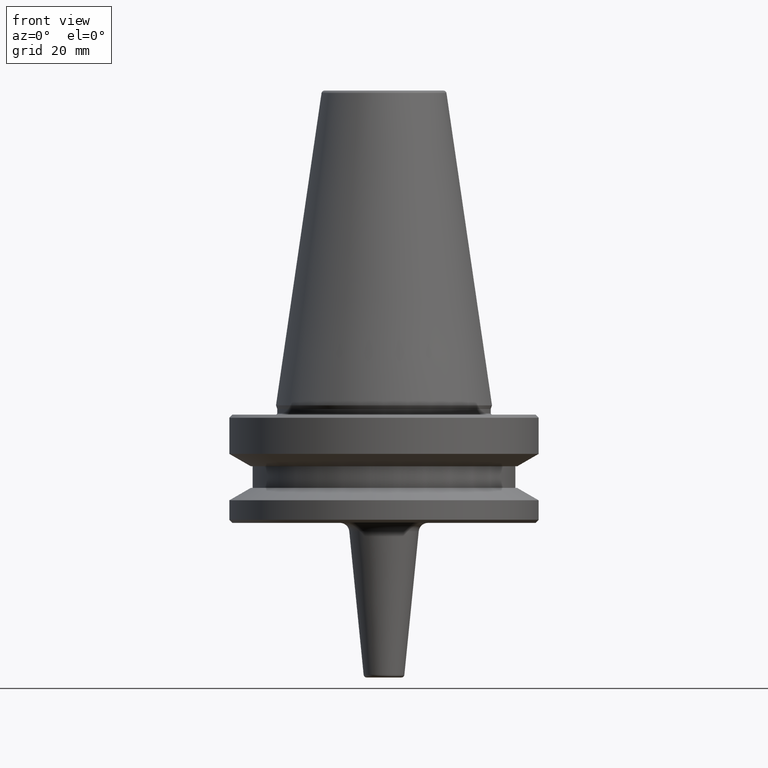
[diagram: clean part render]
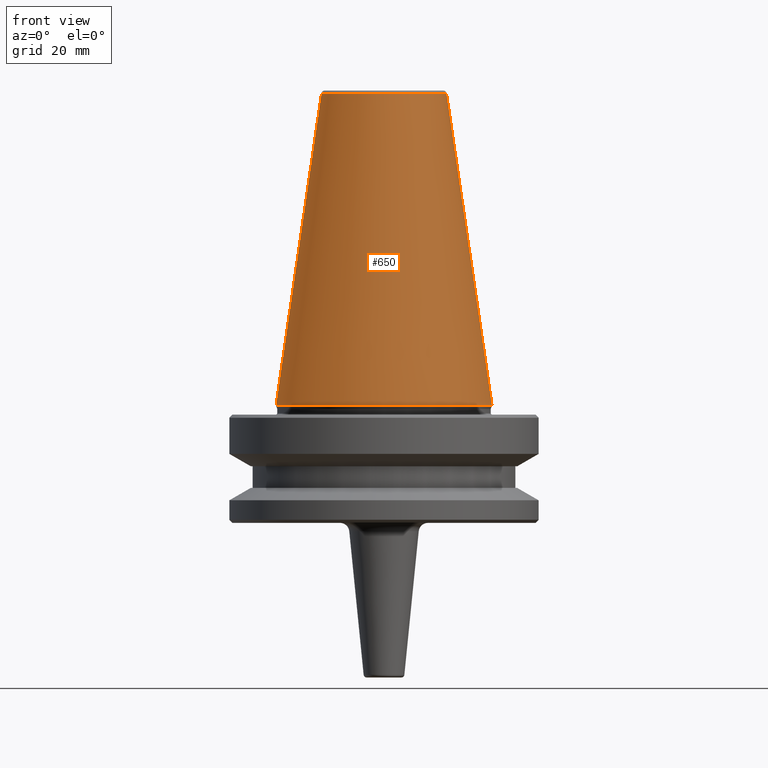
[diagram: same view with one face highlighted and labeled with its STEP entity id]
A machine part, front view. The second image highlights one B-rep face of the part: STEP entity #650.
In plain terms, the highlighted conical surface has half-angle 8.297 deg.
Its self-contained STEP definition (entity closure, byte-faithful):
#29 = EDGE_CURVE ( 'NONE', #310, #406, #823, .T. ) ;
#43 = CARTESIAN_POINT ( 'NONE',  ( 34.92499999999999700, 4.277078946022130900E-015, 0.0000000000000000000 ) ) ;
#64 = ORIENTED_EDGE ( 'NONE', *, *, #29, .T. ) ;
#131 = DIRECTION ( 'NONE',  ( 0.1443082272673000800, 1.767266086135278300E-017, -0.9895327864921754600 ) ) ;
#133 = VECTOR ( 'NONE', #131, 1000.000000000000000 ) ;
#158 = DIRECTION ( 'NONE',  ( 0.0000000000000000000, 0.0000000000000000000, -1.000000000000000000 ) ) ;
#173 = CARTESIAN_POINT ( 'NONE',  ( -34.92499999999999700, 0.0000000000000000000, 0.0000000000000000000 ) ) ;
#191 = DIRECTION ( 'NONE',  ( -0.0000000000000000000, -0.0000000000000000000, 1.000000000000000000 ) ) ;
#194 = EDGE_LOOP ( 'NONE', ( #414, #732, #388, #64 ) ) ;
#202 = AXIS2_PLACEMENT_3D ( 'NONE', #753, #671, #294 ) ;
#203 = LINE ( 'NONE', #173, #993 ) ;
#229 = CARTESIAN_POINT ( 'NONE',  ( 0.0000000000000000000, 0.0000000000000000000, 0.0000000000000000000 ) ) ;
#250 = CIRCLE ( 'NONE', #202, 20.20381605152244500 ) ;
#294 = DIRECTION ( 'NONE',  ( 1.000000000000000000, 0.0000000000000000000, 0.0000000000000000000 ) ) ;
#298 = VERTEX_POINT ( 'NONE', #946 ) ;
#309 = EDGE_CURVE ( 'NONE', #298, #923, #250, .T. ) ;
#310 = VERTEX_POINT ( 'NONE', #510 ) ;
#319 = AXIS2_PLACEMENT_3D ( 'NONE', #229, #158, #856 ) ;
#388 = ORIENTED_EDGE ( 'NONE', *, *, #618, .T. ) ;
#406 = VERTEX_POINT ( 'NONE', #756 ) ;
#414 = ORIENTED_EDGE ( 'NONE', *, *, #432, .F. ) ;
#432 = EDGE_CURVE ( 'NONE', #923, #406, #967, .T. ) ;
#450 = DIRECTION ( 'NONE',  ( 1.000000000000000000, 0.0000000000000000000, 0.0000000000000000000 ) ) ;
#471 = CARTESIAN_POINT ( 'NONE',  ( 20.20381605152244500, 3.375666405914009100E-015, 100.9443082272672900 ) ) ;
#510 = CARTESIAN_POINT ( 'NONE',  ( -34.92499999999999700, 4.277078946022131700E-015, 0.0000000000000000000 ) ) ;
#618 = EDGE_CURVE ( 'NONE', #298, #310, #203, .T. ) ;
#646 = CONICAL_SURFACE ( 'NONE', #319, 34.92499999999999700, 0.1448138465474120600 ) ;
#650 = ADVANCED_FACE ( 'NONE', ( #792 ), #646, .T. ) ;
#671 = DIRECTION ( 'NONE',  ( -0.0000000000000000000, -0.0000000000000000000, 1.000000000000000000 ) ) ;
#732 = ORIENTED_EDGE ( 'NONE', *, *, #309, .F. ) ;
#753 = CARTESIAN_POINT ( 'NONE',  ( 0.0000000000000000000, 0.0000000000000000000, 100.9443082272672900 ) ) ;
#756 = CARTESIAN_POINT ( 'NONE',  ( 34.92499999999999700, 0.0000000000000000000, 0.0000000000000000000 ) ) ;
#792 = FACE_OUTER_BOUND ( 'NONE', #194, .T. ) ;
#823 = CIRCLE ( 'NONE', #929, 34.92499999999999700 ) ;
#834 = CARTESIAN_POINT ( 'NONE',  ( 0.0000000000000000000, 0.0000000000000000000, 0.0000000000000000000 ) ) ;
#856 = DIRECTION ( 'NONE',  ( -1.000000000000000000, 0.0000000000000000000, 0.0000000000000000000 ) ) ;
#923 = VERTEX_POINT ( 'NONE', #471 ) ;
#929 = AXIS2_PLACEMENT_3D ( 'NONE', #834, #191, #450 ) ;
#946 = CARTESIAN_POINT ( 'NONE',  ( -20.20381605152244500, 0.0000000000000000000, 100.9443082272672900 ) ) ;
#967 = LINE ( 'NONE', #43, #133 ) ;
#975 = DIRECTION ( 'NONE',  ( -0.1443082272673000800, 0.0000000000000000000, -0.9895327864921754600 ) ) ;
#993 = VECTOR ( 'NONE', #975, 1000.000000000000000 ) ;